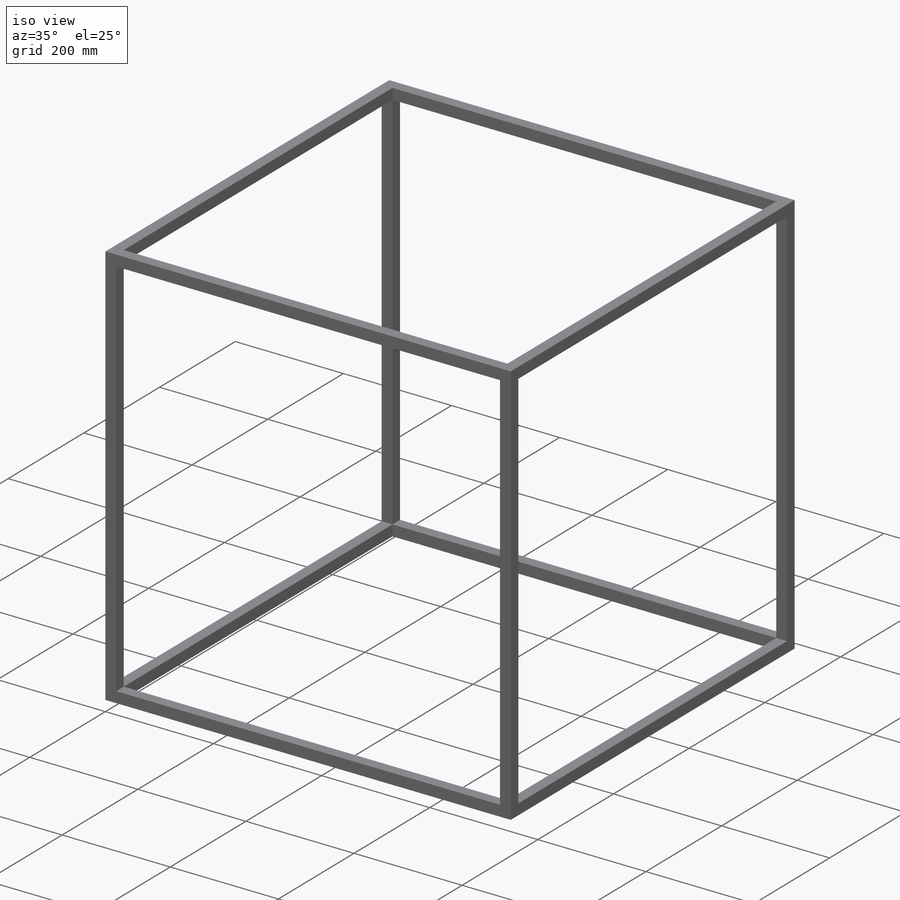
[diagram: iso view]
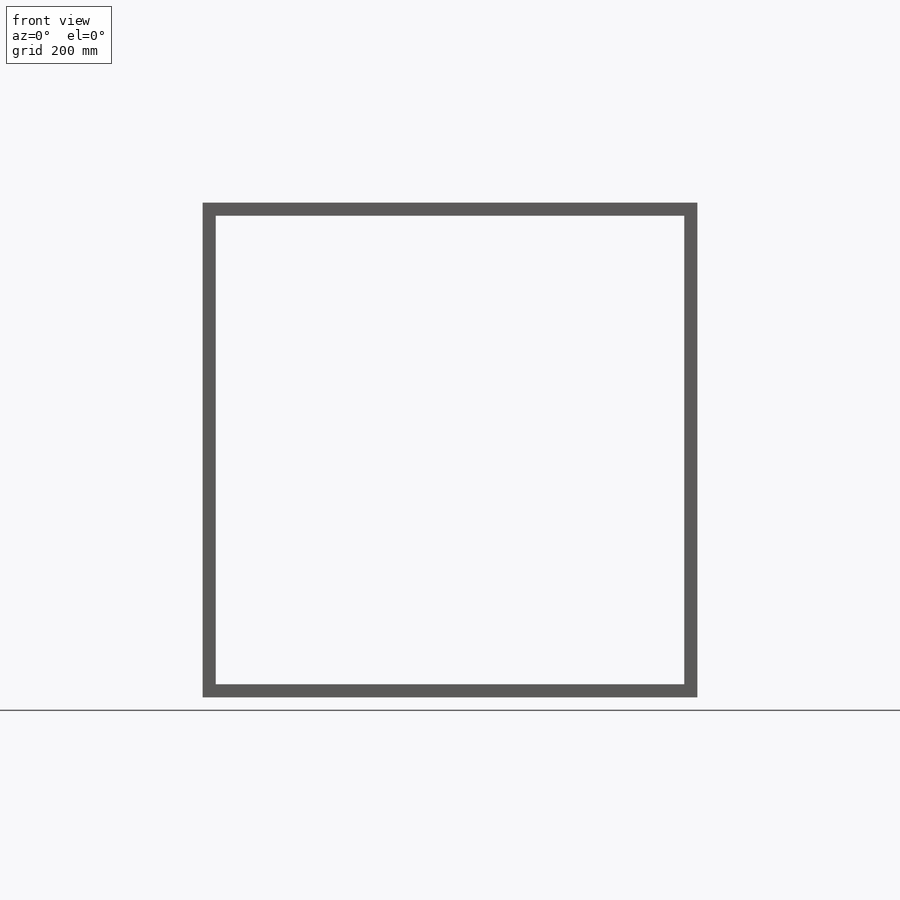
[diagram: front view]
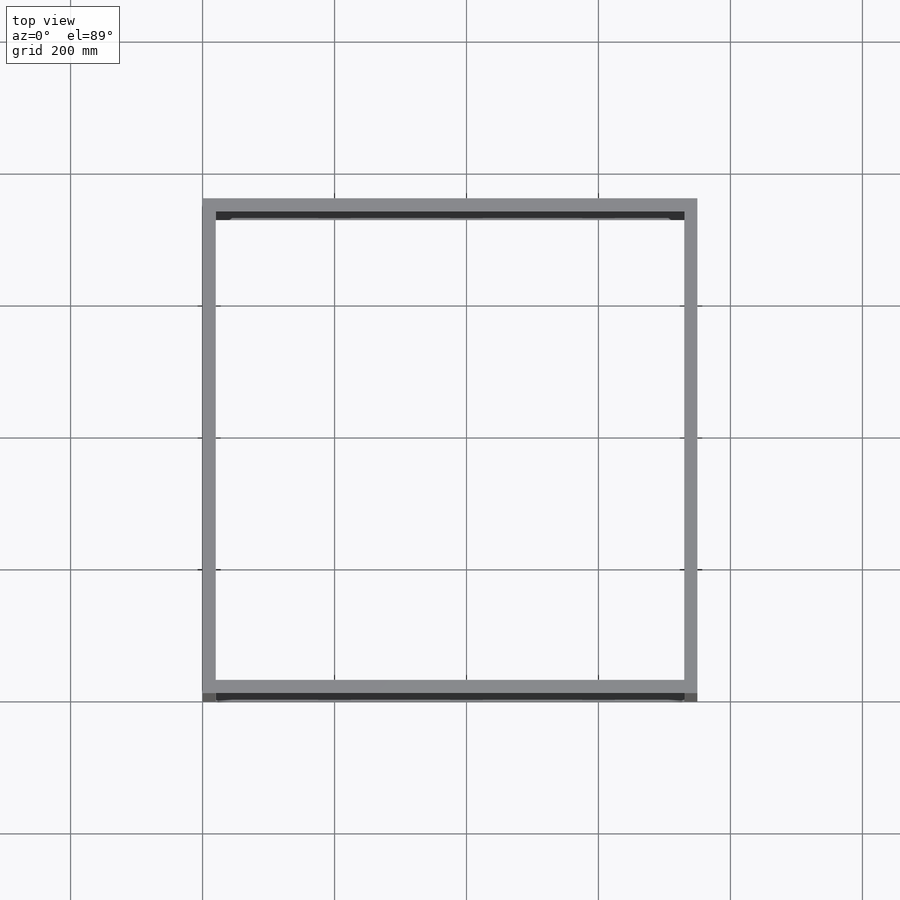
[diagram: top view]
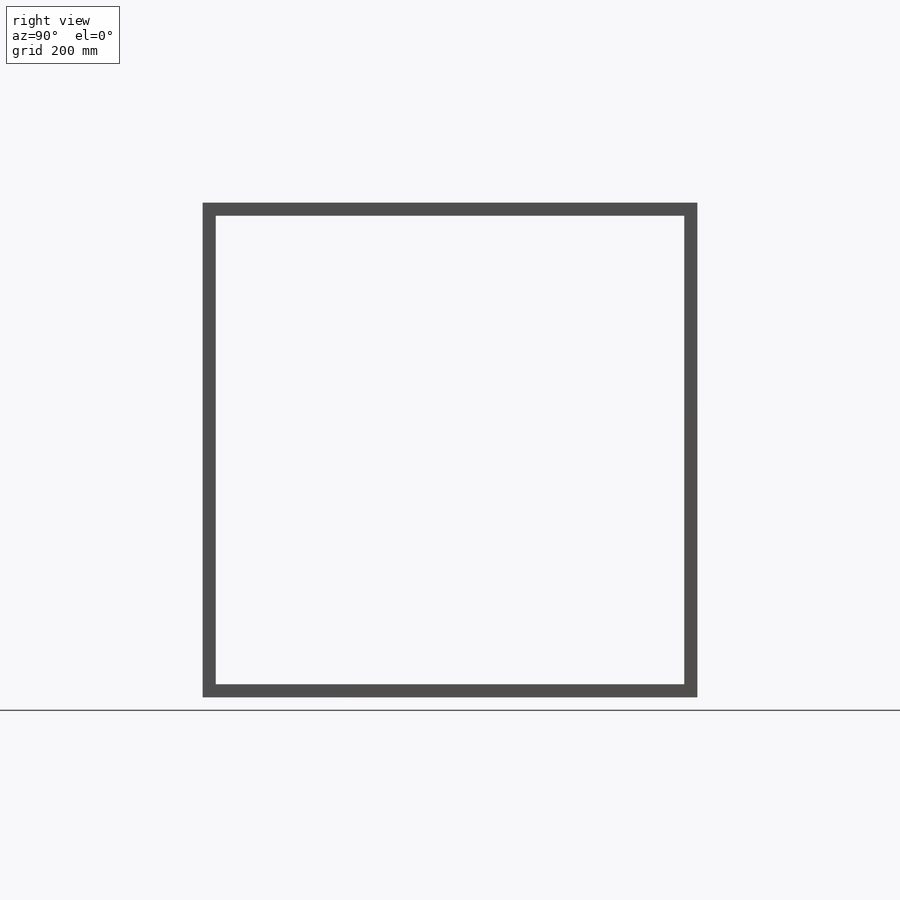
[diagram: right view]
SOLIDWORKS PART (.sldprt)
format: sldprt  version: not decoded by parser v0  size: 191,488 bytes
history: native  units: mm
features: sketch x3, extrude x3, material x1 (+11 scaffold rows collapsed)
feature tree (18):
  scaffold x11  (default folders/planes/origin — collapsed)
  material  "Material <not specified>"
  sketch  "Sketch1"  dims[c1.D1=~40.422795mm c1.D2=~58.681465mm c2.D1=750.0mm c2.D2=750.0mm c2.D3=~680.501141mm c2.D4=~632.490324mm c3.D3=20.0mm c3.D4=20.0mm c3.D5=20.0mm c3.D6=20.0mm]
  extrude  "Boss-Extrude1"  Depth=20mm
  sketch  "Sketch2"  dims[c1.D1=20.0mm c1.D2=20.0mm c2.D1=~25.56109mm c2.D2=~42.415657mm c3.D1=20.0mm c3.D2=20.0mm c4.D1=20.0mm c4.D2=20.0mm c5.D1=20.0mm c5.D2=20.0mm]
  extrude  "Boss-Extrude2"  Depth=710mm
  sketch  "Sketch3"
  extrude  "Boss-Extrude3"  Depth=20mm
decode coverage: 5 of 6 modeling features carry decoded parameters
note: ~ marks probable driven/reference dimensions
note: suppression state not decoded; provenance and decode notes live in map.json
